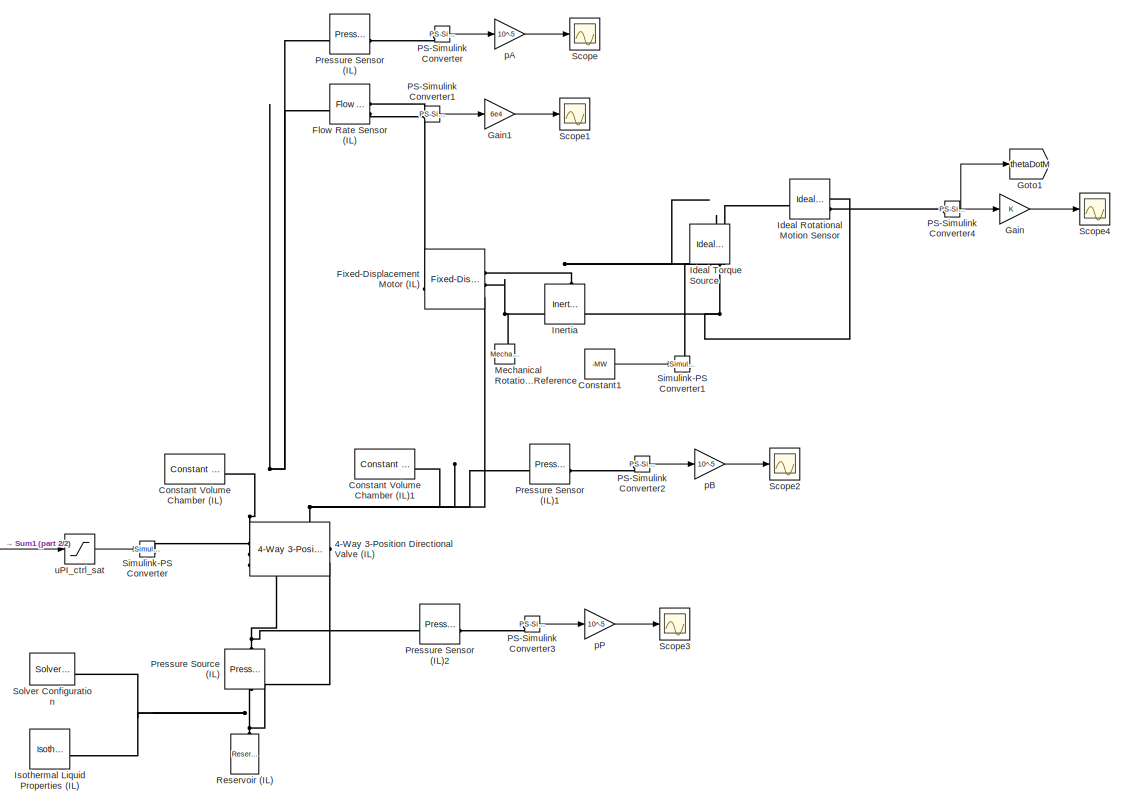
[diagram: root canvas - part 1/2, right side, full height]
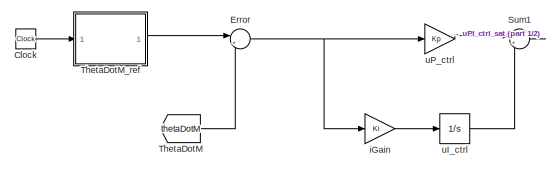
[diagram: root canvas - part 2/2, bottom left region]
MODEL slx_459d1567ba93
KIND model
CONFIG AbsTol = auto
CONFIG EnableMultiTasking = off
CONFIG FixedStep = auto
CONFIG MaxStep = auto
CONFIG MinStep = auto
CONFIG RelTol = 1e-3
CONFIG SampleTimeConstraint = Unconstrained
CONFIG SolverName = VariableStepAuto
CONFIG StartTime = 0.0
CONFIG StopTime = 30
WORKSPACE source: MATLAB code (in-file)
WORKSPACE code: clear;
WORKSPACE rho = 875
WORKSPACE beta = 1000
WORKSPACE pP = 140
WORKSPACE dp0 = 70e5  (= 7000000)
WORKSPACE Q0 = 100/6e4  (= 0.00166666666667)
WORKSPACE Cd = 0.75
WORKSPACE AdMax_SI = Q0/(Cd*(2/rho*dp0)^0.5)  (= 1.75682092232e-05)
WORKSPACE AdMax = AdMax_SI*1e6  (= 17.5682092232)
WORKSPACE DM = 250
WORKSPACE m = 200
WORKSPACE Wm = 200*9.81  (= 1962)
WORKSPACE rW = 0.25
WORKSPACE MW = Wm*rW  (= 490.5)
WORKSPACE JM = 0.01
WORKSPACE JD = 0.1
WORKSPACE Jeff = JM + JD + m*rW^2  (= 12.61)
WORKSPACE thetaDot0 = 5
WORKSPACE T0 = 10
WORKSPACE Kp = 0.05
WORKSPACE Ki = 0.2
BLOCK [Reference] 4-Way 3-Position Directional Valve (IL)  REF=SimscapeFluids_lib/Isothermal Liquid/Valves & Orifices/Directional Control
Valves/4-Way 3-Position
Directional Valve
(IL)
  SourceBlock = SimscapeFluids_lib/Isothermal Liquid/Valves & Orifices/Directional Control\nValves/4-Way 3-Position\nDirectional Valve\n(IL)
  SourceType = 4-Way 3-Position\nDirectional Valve\n(IL)
BLOCK [Clock] Clock
BLOCK [Reference] Constant Volume Chamber (IL)  REF=fl_lib/Isothermal Liquid/Elements/Constant Volume
Chamber (IL)
  SourceBlock = fl_lib/Isothermal Liquid/Elements/Constant Volume\nChamber (IL)
  SourceType = Constant Volume\nChamber (IL)
BLOCK [Reference] Constant Volume Chamber (IL)1  REF=fl_lib/Isothermal Liquid/Elements/Constant Volume
Chamber (IL)
  SourceBlock = fl_lib/Isothermal Liquid/Elements/Constant Volume\nChamber (IL)
  SourceType = Constant Volume\nChamber (IL)
BLOCK [Constant] Constant1
  Value = -MW
BLOCK [Sum] Error
  Inputs = |+-
BLOCK [Reference] Fixed-Displacement Motor (IL)  REF=SimscapeFluids_lib/Isothermal Liquid/Pumps & Motors/Fixed-Displacement
Motor (IL)
  SourceBlock = SimscapeFluids_lib/Isothermal Liquid/Pumps & Motors/Fixed-Displacement\nMotor (IL)
  SourceType = Fixed-Displacement\nMotor (IL)
BLOCK [Reference] Flow Rate Sensor (IL)  REF=fl_lib/Isothermal Liquid/Sensors/Flow Rate Sensor
(IL)
  SourceBlock = fl_lib/Isothermal Liquid/Sensors/Flow Rate Sensor\n(IL)
  SourceType = Flow Rate Sensor\n(IL)
BLOCK [Gain] Gain
BLOCK [Gain] Gain1
  Gain = 6e4
BLOCK [Goto] Goto1
  GotoTag = thetaDotM
BLOCK [Reference] Ideal Rotational Motion Sensor  REF=fl_lib/Mechanical/Mechanical Sensors/Ideal Rotational
Motion Sensor
  SourceBlock = fl_lib/Mechanical/Mechanical Sensors/Ideal Rotational\nMotion Sensor
  SourceType = Ideal Rotational\nMotion Sensor
BLOCK [Reference] Ideal Torque Source  REF=fl_lib/Mechanical/Mechanical Sources/Ideal Torque Source
  NameLocation = right
  SourceBlock = fl_lib/Mechanical/Mechanical Sources/Ideal Torque Source
  SourceType = Ideal Torque Source
BLOCK [Reference] Inertia  REF=fl_lib/Mechanical/Rotational Elements/Inertia
  NameLocation = right
  SourceBlock = fl_lib/Mechanical/Rotational Elements/Inertia
  SourceType = Inertia
BLOCK [Reference] Isothermal Liquid Properties (IL)  REF=fl_lib/Isothermal Liquid/Utilities/Isothermal Liquid
Properties (IL)
  SourceBlock = fl_lib/Isothermal Liquid/Utilities/Isothermal Liquid\nProperties (IL)
  SourceType = Isothermal Liquid\nProperties (IL)
BLOCK [Reference] Mechanical Rotational Reference  REF=fl_lib/Mechanical/Rotational Elements/Mechanical
Rotational Reference
  NameLocation = right
  SourceBlock = fl_lib/Mechanical/Rotational Elements/Mechanical\nRotational Reference
  SourceType = Mechanical\nRotational Reference
BLOCK [Reference] PS-Simulink Converter  REF=nesl_utility/PS-Simulink
Converter
  SourceBlock = nesl_utility/PS-Simulink\nConverter
  SourceType = PS-Simulink\nConverter
BLOCK [Reference] PS-Simulink Converter1  REF=nesl_utility/PS-Simulink
Converter
  SourceBlock = nesl_utility/PS-Simulink\nConverter
  SourceType = PS-Simulink\nConverter
BLOCK [Reference] PS-Simulink Converter2  REF=nesl_utility/PS-Simulink
Converter
  SourceBlock = nesl_utility/PS-Simulink\nConverter
  SourceType = PS-Simulink\nConverter
BLOCK [Reference] PS-Simulink Converter3  REF=nesl_utility/PS-Simulink
Converter
  SourceBlock = nesl_utility/PS-Simulink\nConverter
  SourceType = PS-Simulink\nConverter
BLOCK [Reference] PS-Simulink Converter4  REF=nesl_utility/PS-Simulink
Converter
  SourceBlock = nesl_utility/PS-Simulink\nConverter
  SourceType = PS-Simulink\nConverter
BLOCK [Reference] Pressure Sensor (IL)  REF=fl_lib/Isothermal Liquid/Sensors/Pressure Sensor (IL)
  SourceBlock = fl_lib/Isothermal Liquid/Sensors/Pressure Sensor (IL)
  SourceType = Pressure Sensor (IL)
BLOCK [Reference] Pressure Sensor (IL)1  REF=fl_lib/Isothermal Liquid/Sensors/Pressure Sensor (IL)
  SourceBlock = fl_lib/Isothermal Liquid/Sensors/Pressure Sensor (IL)
  SourceType = Pressure Sensor (IL)
BLOCK [Reference] Pressure Sensor (IL)2  REF=fl_lib/Isothermal Liquid/Sensors/Pressure Sensor (IL)
  SourceBlock = fl_lib/Isothermal Liquid/Sensors/Pressure Sensor (IL)
  SourceType = Pressure Sensor (IL)
BLOCK [Reference] Pressure Source (IL)  REF=fl_lib/Isothermal Liquid/Sources/Pressure Source (IL)
  NameLocation = right
  SourceBlock = fl_lib/Isothermal Liquid/Sources/Pressure Source (IL)
  SourceType = Pressure Source (IL)
BLOCK [Reference] Reservoir (IL)  REF=fl_lib/Isothermal Liquid/Elements/Reservoir (IL)
  NameLocation = right
  SourceBlock = fl_lib/Isothermal Liquid/Elements/Reservoir (IL)
  SourceType = Reservoir (IL)
BLOCK [Scope] Scope
  ActiveDisplayYMaximum = 143.42586
  ActiveDisplayYMinimum = 116.27129
  Floating = off
  GraphicalSettings = {"GraphicalSettings":{"LegacySettings":true,"Style":{"Style":{"AxesColor":"[0 0 0]","ChannelNames":[""],"ColorOrder":"[1 0.909803921568627 0.392156862745098;0.149019607843137 0.549019607843137 0.866666666666667;0.96078431372549 0.466666666666667 0.16078431372549;0.286274509803922 0.858823529411765 0.250980392156863;0.752941176470588 0.36078431372549 0.984313725490196;0.423529411764706 0.9568627450...<+432ch>  <repeated x4 — deduplicated; at blocks: Scope, Scope2, Scope3, Scope4>
  MultipleDisplayCache = [{"MaxYLimMag":143.42586,"MaxYLimReal":143.42586,"MinYLimMag":116.27129,"MinYLimReal":116.27129,"PlotAsMagnitudePhase":false,"ShowGrid":true,"ShowLegend":false,"Title":"%<SignalLabel>","YLabel":""}]
  NumInputPorts = 1
  WasSavedAsWebScope = on
  WindowPosition = [865 239.4 560 420]
BLOCK [Scope] Scope1
  ActiveDisplayYMaximum = 38.4919
  ActiveDisplayYMinimum = -4.82198
  DataLoggingVariableName = ScopeData1
  Floating = off
  GraphicalSettings = {"GraphicalSettings":{"LegacySettings":true,"Style":{"AxesScalingProperties":{"ScaleAxesLimitsAtStop":false},"Style":{"AxesColor":"[0 0 0]","ChannelNames":[""],"ColorOrder":"[1 0.909803921568627 0.392156862745098;0.149019607843137 0.549019607843137 0.866666666666667;0.96078431372549 0.466666666666667 0.16078431372549;0.286274509803922 0.858823529411765 0.250980392156863;0.752941176470588 0.3607843...<+513ch>
  MultipleDisplayCache = [{"MaxYLimMag":38.4919,"MaxYLimReal":38.4919,"MinYLimMag":0,"MinYLimReal":-4.82198,"PlotAsMagnitudePhase":false,"ShowGrid":true,"ShowLegend":false,"Title":"%<SignalLabel>","YLabel":""}]
  NumInputPorts = 1
  WasSavedAsWebScope = on
  WindowPosition = [865 239.4 560 420]
BLOCK [Scope] Scope2
  ActiveDisplayYMaximum = 21.16103
  ActiveDisplayYMinimum = -0.58181
  DataLoggingVariableName = ScopeData2
  Floating = off
  MultipleDisplayCache = [{"MaxYLimMag":21.16103,"MaxYLimReal":21.16103,"MinYLimMag":0,"MinYLimReal":-0.58181,"PlotAsMagnitudePhase":false,"ShowGrid":true,"ShowLegend":false,"Title":"%<SignalLabel>","YLabel":""}]
  NumInputPorts = 1
  WasSavedAsWebScope = on
  WindowPosition = [865 239.4 560 420]
BLOCK [Scope] Scope3
  ActiveDisplayYMaximum = 240
  ActiveDisplayYMinimum = 40
  DataLoggingVariableName = ScopeData3
  Floating = off
  MultipleDisplayCache = [{"MaxYLimMag":240,"MaxYLimReal":240,"MinYLimMag":40,"MinYLimReal":40,"PlotAsMagnitudePhase":false,"ShowGrid":true,"ShowLegend":false,"Title":"%<SignalLabel>","YLabel":""}]
  NumInputPorts = 1
  WasSavedAsWebScope = on
  WindowPosition = [865 239.4 560 420]
BLOCK [Scope] Scope4
  ActiveDisplayYMaximum = 6.27735
  ActiveDisplayYMinimum = -6.24351
  DataLoggingVariableName = ScopeData4
  Floating = off
  MultipleDisplayCache = [{"MaxYLimMag":6.27735,"MaxYLimReal":6.27735,"MinYLimMag":0,"MinYLimReal":-6.24351,"PlotAsMagnitudePhase":false,"ShowGrid":true,"ShowLegend":false,"Title":"%<SignalLabel>","YLabel":""}]
  NumInputPorts = 1
  WasSavedAsWebScope = on
BLOCK [Reference] Simulink-PS Converter  REF=nesl_utility/Simulink-PS
Converter
  SourceBlock = nesl_utility/Simulink-PS\nConverter
  SourceType = Simulink-PS\nConverter
BLOCK [Reference] Simulink-PS Converter1  REF=nesl_utility/Simulink-PS
Converter
  SourceBlock = nesl_utility/Simulink-PS\nConverter
  SourceType = Simulink-PS\nConverter
BLOCK [Reference] Solver Configuration  REF=nesl_utility/Solver
Configuration
  SourceBlock = nesl_utility/Solver\nConfiguration
  SourceType = Solver\nConfiguration
BLOCK [Sum] Sum1
  Inputs = |++
BLOCK [From] ThetaDotM
  GotoTag = thetaDotM
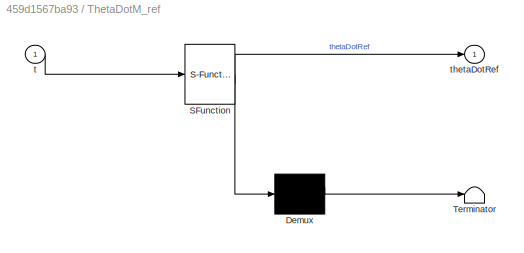
BLOCK [SubSystem] ThetaDotM_ref
  ErrorFcn = Stateflow.Translate.translate
  PermitHierarchicalResolution = ExplicitOnly
  SFBlockType = MATLAB Function
  TreatAsAtomicUnit = on
BLOCK [Demux] ThetaDotM_ref/ Demux 
  Outputs = 1
BLOCK [S-Function] ThetaDotM_ref/ SFunction 
  EnableBusSupport = off
  FunctionName = sf_sfun
  Parameters = T0,thetaDot0
  PortCounts = [1 2]
  SFcnIsStateOwnerBlock = off
  SFunctionDeploymentMode = off
  Tag = Stateflow S-Function 2
BLOCK [Terminator] ThetaDotM_ref/ Terminator 
BLOCK [Inport] ThetaDotM_ref/t
BLOCK [Outport] ThetaDotM_ref/thetaDotRef
BLOCK [Gain] iGain
  Gain = Ki
BLOCK [Gain] pA
  Gain = 10^-5
BLOCK [Gain] pB
  Gain = 10^-5
BLOCK [Gain] pP
  Gain = 10^-5
BLOCK [Integrator] uI_ctrl
BLOCK [Saturate] uPI_ctrl_sat
  LowerLimit = -1
  UpperLimit = 1
BLOCK [Gain] uP_ctrl
  Gain = Kp
LINE Clock:1 -> ThetaDotM_ref:1
LINE Constant1:1 -> Simulink-PS Converter1:1
NET Error:1 -> iGain:1, uP_ctrl:1
LINE Gain1:1 -> Scope1:1
LINE Gain:1 -> Scope4:1
LINE PS-Simulink Converter1:1 -> Gain1:1
LINE PS-Simulink Converter2:1 -> pB:1
LINE PS-Simulink Converter3:1 -> pP:1
NET PS-Simulink Converter4:1 -> Gain:1, Goto1:1
LINE PS-Simulink Converter:1 -> pA:1
LINE Sum1:1 -> uPI_ctrl_sat:1
LINE ThetaDotM:1 -> Error:2
LINE ThetaDotM_ref:1 -> Error:1
LINE iGain:1 -> uI_ctrl:1
LINE pA:1 -> Scope:1
LINE pB:1 -> Scope2:1
LINE pP:1 -> Scope3:1
LINE uI_ctrl:1 -> Sum1:2
LINE uPI_ctrl_sat:1 -> Simulink-PS Converter:1
LINE uP_ctrl:1 -> Sum1:1
PLINE 4-Way 3-Position Directional Valve (IL):LConn1 -- Simulink-PS Converter:RConn1
PNET net1: 4-Way 3-Position Directional Valve (IL):LConn2 -- Constant Volume Chamber (IL):LConn1 -- Flow Rate Sensor (IL):LConn1 -- Pressure Sensor (IL):LConn1
PNET net2: 4-Way 3-Position Directional Valve (IL):LConn3 -- Constant Volume Chamber (IL)1:LConn1 -- Fixed-Displacement Motor (IL):RConn3 -- Pressure Sensor (IL)1:LConn1
PNET net3: 4-Way 3-Position Directional Valve (IL):RConn1 -- Pressure Sensor (IL)2:LConn1 -- Pressure Source (IL):RConn1
PNET net4: 4-Way 3-Position Directional Valve (IL):RConn2 -- Isothermal Liquid Properties (IL):RConn1 -- Pressure Source (IL):LConn1 -- Reservoir (IL):LConn1 -- Solver Configuration:RConn1
PLINE Fixed-Displacement Motor (IL):LConn1 -- Flow Rate Sensor (IL):RConn1
PNET net5: Fixed-Displacement Motor (IL):RConn1 -- Ideal Rotational Motion Sensor:LConn1 -- Ideal Torque Source:LConn1 -- Inertia:LConn1
PNET net6: Fixed-Displacement Motor (IL):RConn2 -- Ideal Rotational Motion Sensor:RConn1 -- Ideal Torque Source:RConn2 -- Mechanical Rotational Reference:LConn1
PLINE Flow Rate Sensor (IL):RConn2 -- PS-Simulink Converter1:LConn1
PLINE Ideal Rotational Motion Sensor:RConn2 -- PS-Simulink Converter4:LConn1
PLINE Ideal Torque Source:RConn1 -- Simulink-PS Converter1:RConn1
PLINE PS-Simulink Converter2:LConn1 -- Pressure Sensor (IL)1:RConn1
PLINE PS-Simulink Converter3:LConn1 -- Pressure Sensor (IL)2:RConn1
PLINE PS-Simulink Converter:LConn1 -- Pressure Sensor (IL):RConn1
note: NET lines group one-source signal fan-out (src -> all destinations, sorted); 1:1 wires keep LINE; PNET lines group multi-terminal physical nets as a canonical sorted terminal list (undirected conserving connections); 2-terminal nets keep the pairwise PLINE form
CHART ThetaDotM_ref states=1 transitions=1
  STATE_LABEL 'eML_blk_kernel()'
  STATE_LABEL 'SCRIPT:\nfunction thetaDotRef = fcn(t, thetaDot0, T0)\n\nf = 1/T0;\nw = 2*pi*f;\n\nthetaDotRef = thetaDot0*sin(w*t);\n'
CHART  states=0 transitions=0
